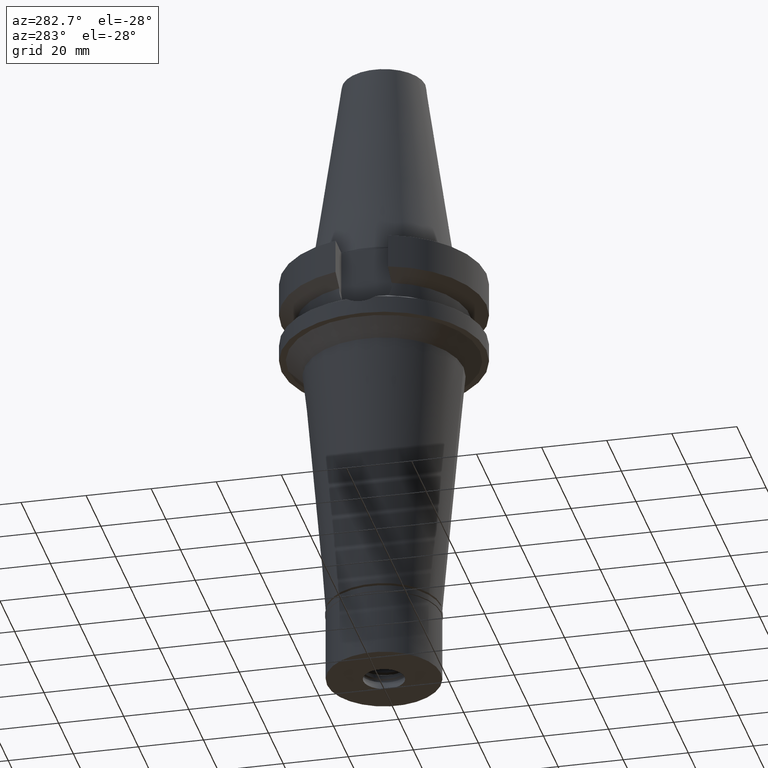
[diagram: clean part render]
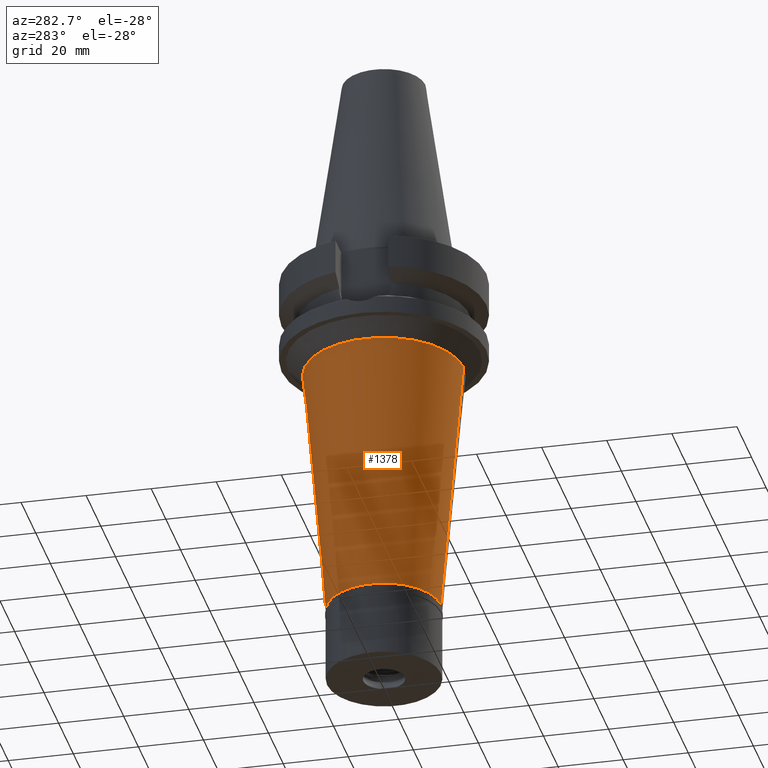
[diagram: same view with one face highlighted and labeled with its STEP entity id]
A machine part, auxiliary view. The second image highlights one B-rep face of the part: STEP entity #1378.
In plain terms, the highlighted conical surface has half-angle 5 deg.
Its self-contained STEP definition (entity closure, byte-faithful):
#12 = CARTESIAN_POINT ( 'NONE',  ( 0.0000000000000000000, -24.47284648302000321, -32.00000000000000000 ) ) ;
#103 = DIRECTION ( 'NONE',  ( 0.0000000000000000000, 0.0000000000000000000, 1.000000000000000000 ) ) ;
#133 = CARTESIAN_POINT ( 'NONE',  ( 0.0000000000000000000, 0.0000000000000000000, -71.84999999999999432 ) ) ;
#258 = ORIENTED_EDGE ( 'NONE', *, *, #1751, .T. ) ;
#280 = DIRECTION ( 'NONE',  ( 0.0000000000000000000, 0.0000000000000000000, -1.000000000000000000 ) ) ;
#349 = DIRECTION ( 'NONE',  ( 0.0000000000000000000, -0.08715574274768382590, -0.9961946980917432137 ) ) ;
#495 = CARTESIAN_POINT ( 'NONE',  ( 0.0000000000000000000, 17.50000000000000000, -111.6999999999999886 ) ) ;
#576 = CARTESIAN_POINT ( 'NONE',  ( 0.0000000000000000000, 0.0000000000000000000, -32.00000000000000000 ) ) ;
#675 = EDGE_CURVE ( 'NONE', #2943, #1509, #981, .T. ) ;
#746 = CARTESIAN_POINT ( 'NONE',  ( 0.0000000000000000000, 0.0000000000000000000, -111.6999999999999886 ) ) ;
#900 = LINE ( 'NONE', #1122, #2214 ) ;
#981 = CIRCLE ( 'NONE', #1235, 24.47284648302000321 ) ;
#1011 = DIRECTION ( 'NONE',  ( 0.0000000000000000000, 0.0000000000000000000, 1.000000000000000000 ) ) ;
#1122 = CARTESIAN_POINT ( 'NONE',  ( 0.0000000000000000000, 24.47284648302000321, -32.00000000000000000 ) ) ;
#1195 = AXIS2_PLACEMENT_3D ( 'NONE', #746, #1011, #1973 ) ;
#1235 = AXIS2_PLACEMENT_3D ( 'NONE', #576, #280, #2509 ) ;
#1333 = CARTESIAN_POINT ( 'NONE',  ( 0.0000000000000000000, 24.47284648302000321, -32.00000000000000000 ) ) ;
#1378 = ADVANCED_FACE ( 'NONE', ( #2078 ), #2014, .T. ) ;
#1402 = EDGE_CURVE ( 'NONE', #1509, #2840, #900, .T. ) ;
#1455 = DIRECTION ( 'NONE',  ( 0.0000000000000000000, 0.08715574274768382590, -0.9961946980917432137 ) ) ;
#1509 = VERTEX_POINT ( 'NONE', #1333 ) ;
#1540 = DIRECTION ( 'NONE',  ( 0.0000000000000000000, 1.000000000000000000, 0.0000000000000000000 ) ) ;
#1652 = VECTOR ( 'NONE', #1455, 1000.000000000000227 ) ;
#1751 = EDGE_CURVE ( 'NONE', #2840, #2164, #3132, .T. ) ;
#1812 = EDGE_CURVE ( 'NONE', #2943, #2164, #2743, .T. ) ;
#1909 = ORIENTED_EDGE ( 'NONE', *, *, #675, .T. ) ;
#1930 = CARTESIAN_POINT ( 'NONE',  ( 0.0000000000000000000, -24.47284648302000321, -32.00000000000000000 ) ) ;
#1973 = DIRECTION ( 'NONE',  ( 0.0000000000000000000, 1.000000000000000000, 0.0000000000000000000 ) ) ;
#2014 = CONICAL_SURFACE ( 'NONE', #2975, 20.98642324150999983, 0.08726646259969973729 ) ;
#2078 = FACE_OUTER_BOUND ( 'NONE', #2807, .T. ) ;
#2164 = VERTEX_POINT ( 'NONE', #3102 ) ;
#2214 = VECTOR ( 'NONE', #349, 1000.000000000000227 ) ;
#2324 = ORIENTED_EDGE ( 'NONE', *, *, #1402, .T. ) ;
#2476 = ORIENTED_EDGE ( 'NONE', *, *, #1812, .F. ) ;
#2509 = DIRECTION ( 'NONE',  ( 0.0000000000000000000, -1.000000000000000000, 0.0000000000000000000 ) ) ;
#2743 = LINE ( 'NONE', #12, #1652 ) ;
#2807 = EDGE_LOOP ( 'NONE', ( #258, #2476, #1909, #2324 ) ) ;
#2840 = VERTEX_POINT ( 'NONE', #495 ) ;
#2943 = VERTEX_POINT ( 'NONE', #1930 ) ;
#2975 = AXIS2_PLACEMENT_3D ( 'NONE', #133, #103, #1540 ) ;
#3102 = CARTESIAN_POINT ( 'NONE',  ( 0.0000000000000000000, -17.50000000000000000, -111.6999999999999886 ) ) ;
#3132 = CIRCLE ( 'NONE', #1195, 17.50000000000000000 ) ;